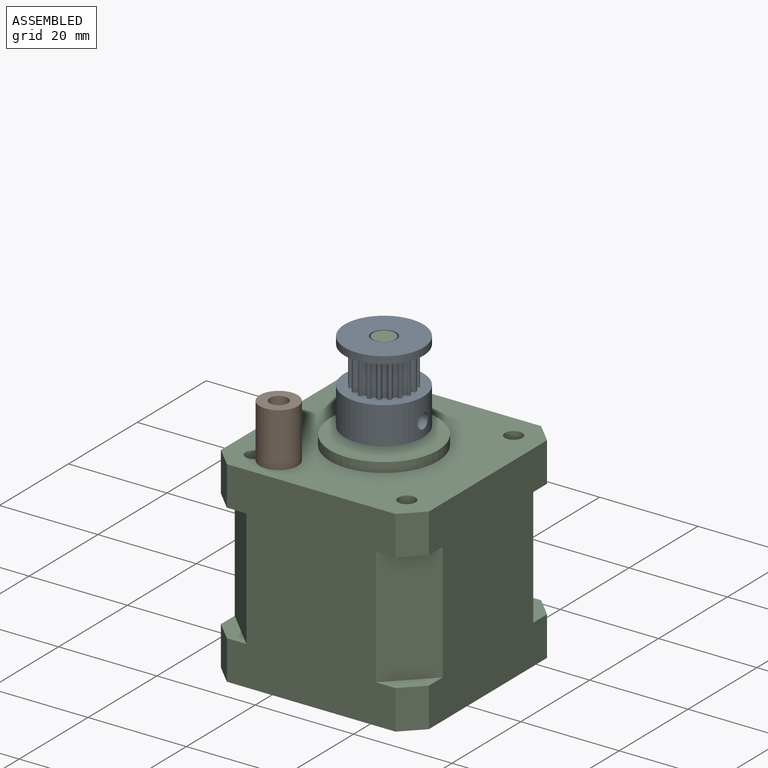
[diagram: assembled view]
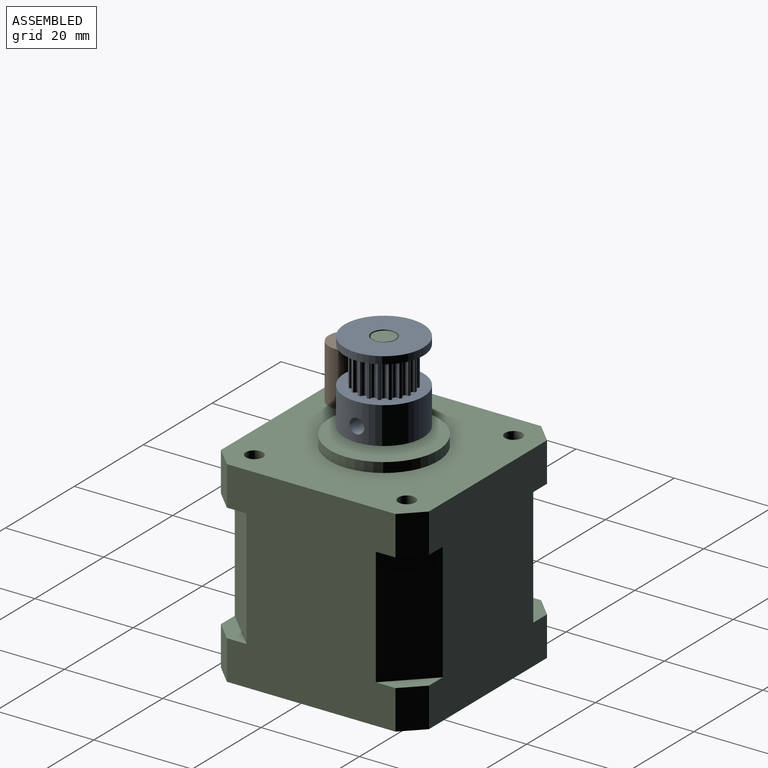
[diagram: assembled view, second angle]
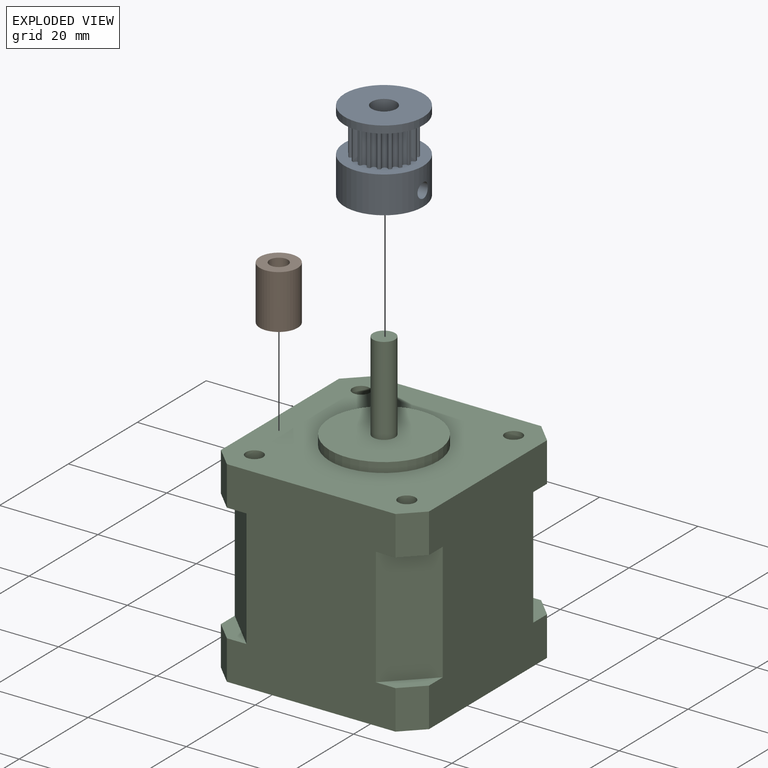
[diagram: exploded view]
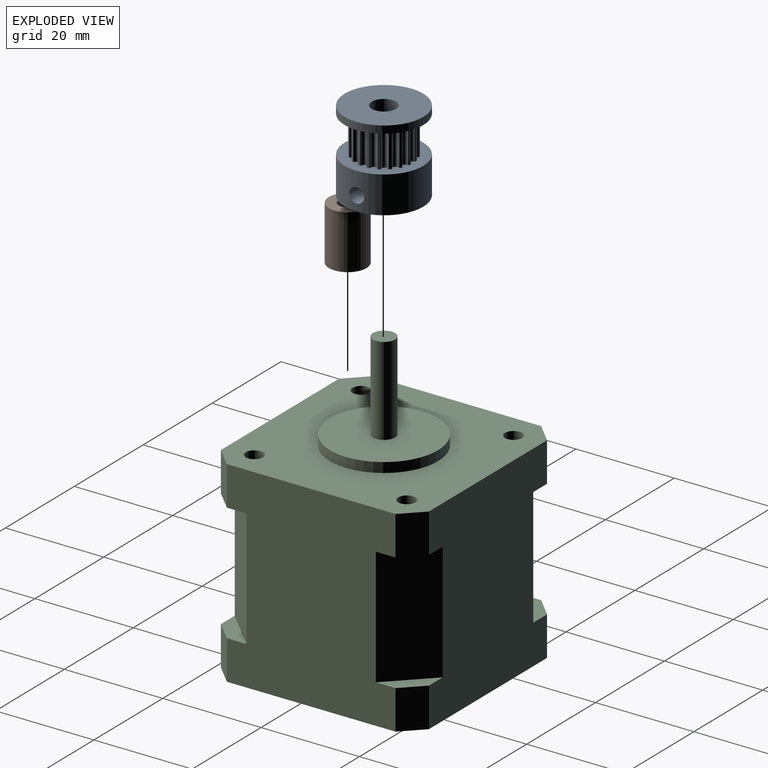
[diagram: exploded view, second angle]
ASSEMBLY  parts=3 mates=2
PART A: 128 faces, bbox 16x16x16.5 mm
  f0: cylinder r=8mm len=16mm, axis (0,0,-1), area 369.9mm2, adj f121,f126,f127
  f1: cylinder r=1mm len=7.5mm, axis (0,0,-1), area 1.9mm2, adj f2,f120,f121,f122
  f2: cylinder r=0.15mm len=7.5mm, axis (0,0,-1), area 1.4mm2, adj f1,f3,f121,f122
  f3: cylinder r=6mm len=7.5mm, axis (0,0,-1), area 3.3mm2, adj f2,f4,f121,f122
  f4: cylinder r=0.15mm len=7.5mm, axis (0,0,-1), area 1.4mm2, adj f3,f5,f121,f122
  f5: cylinder r=1mm len=7.5mm, axis (0,0,-1), area 1.9mm2, adj f4,f6,f121,f122
  f6: cylinder r=0.56mm len=7.5mm, axis (0,0,-1), area 9.8mm2, adj f5,f7,f121,f122
  f7: cylinder r=1mm len=7.5mm, axis (0,0,-1), area 1.9mm2, adj f6,f8,f121,f122
  f8: cylinder r=0.15mm len=7.5mm, axis (0,0,-1), area 1.4mm2, adj f7,f9,f121,f122
  f9: cylinder r=6mm len=7.5mm, axis (0,0,-1), area 3.3mm2, adj f8,f10,f121,f122
  f10: cylinder r=0.15mm len=7.5mm, axis (0,0,-1), area 1.4mm2, adj f9,f11,f121,f122
  f11: cylinder r=1mm len=7.5mm, axis (0,0,-1), area 1.9mm2, adj f10,f12,f121,f122
  f12: cylinder r=0.56mm len=7.5mm, axis (0,0,-1), area 9.8mm2, adj f11,f13,f121,f122
  f13: cylinder r=1mm len=7.5mm, axis (0,0,-1), area 1.9mm2, adj f12,f14,f121,f122
  f14: cylinder r=0.15mm len=7.5mm, axis (0,0,-1), area 1.4mm2, adj f13,f15,f121,f122
  f15: cylinder r=6mm len=7.5mm, axis (0,0,-1), area 3.3mm2, adj f14,f16,f121,f122
  f16: cylinder r=0.15mm len=7.5mm, axis (0,0,-1), area 1.4mm2, adj f15,f17,f121,f122
  f17: cylinder r=1mm len=7.5mm, axis (0,0,-1), area 1.9mm2, adj f16,f18,f121,f122
  f18: cylinder r=0.56mm len=7.5mm, axis (0,0,-1), area 9.8mm2, adj f17,f19,f121,f122
  f19: cylinder r=1mm len=7.5mm, axis (0,0,-1), area 1.9mm2, adj f18,f20,f121,f122
  f20: cylinder r=0.15mm len=7.5mm, axis (0,0,-1), area 1.4mm2, adj f19,f21,f121,f122
  f21: cylinder r=6mm len=7.5mm, axis (0,0,-1), area 3.3mm2, adj f20,f22,f121,f122
  f22: cylinder r=0.15mm len=7.5mm, axis (0,0,-1), area 1.4mm2, adj f21,f23,f121,f122
  f23: cylinder r=1mm len=7.5mm, axis (0,0,-1), area 1.9mm2, adj f22,f24,f121,f122
  f24: cylinder r=0.56mm len=7.5mm, axis (0,0,-1), area 9.8mm2, adj f23,f25,f121,f122
  f25: cylinder r=1mm len=7.5mm, axis (0,0,-1), area 1.9mm2, adj f24,f26,f121,f122
  f26: cylinder r=0.15mm len=7.5mm, axis (0,0,-1), area 1.4mm2, adj f25,f27,f121,f122
  f27: cylinder r=6mm len=7.5mm, axis (0,0,-1), area 2.8mm2, adj f26,f28,f121,f122
  f28: cylinder r=0.15mm len=7.5mm, axis (0,0,-1), area 2mm2, adj f27,f29,f121,f122
  f29: cylinder r=1mm len=7.5mm, axis (0,0,-1), area 1.9mm2, adj f28,f30,f121,f122
  f30: cylinder r=0.56mm len=7.5mm, axis (0,0,-1), area 9.8mm2, adj f29,f31,f121,f122
  f31: cylinder r=1mm len=7.5mm, axis (0,0,-1), area 1.9mm2, adj f30,f32,f121,f122
  f32: cylinder r=0.15mm len=7.5mm, axis (0,0,-1), area 1.4mm2, adj f31,f33,f121,f122
  f33: cylinder r=6mm len=7.5mm, axis (0,0,-1), area 3.3mm2, adj f32,f34,f121,f122
  f34: cylinder r=0.15mm len=7.5mm, axis (0,0,-1), area 1.4mm2, adj f33,f35,f121,f122
  f35: cylinder r=1mm len=7.5mm, axis (0,0,-1), area 1.9mm2, adj f34,f36,f121,f122
  f36: cylinder r=0.56mm len=7.5mm, axis (0,0,-1), area 9.8mm2, adj f35,f37,f121,f122
  f37: cylinder r=1mm len=7.5mm, axis (0,0,-1), area 1.9mm2, adj f36,f38,f121,f122
  f38: cylinder r=0.15mm len=7.5mm, axis (0,0,-1), area 1.4mm2, adj f37,f39,f121,f122
  f39: cylinder r=6mm len=7.5mm, axis (0,0,-1), area 3.3mm2, adj f38,f40,f121,f122
  f40: cylinder r=0.15mm len=7.5mm, axis (0,0,-1), area 1.4mm2, adj f39,f41,f121,f122
  f41: cylinder r=1mm len=7.5mm, axis (0,0,-1), area 1.9mm2, adj f40,f42,f121,f122
  f42: cylinder r=0.56mm len=7.5mm, axis (0,0,-1), area 9.8mm2, adj f41,f43,f121,f122
  f43: cylinder r=1mm len=7.5mm, axis (0,0,-1), area 1.9mm2, adj f42,f44,f121,f122
  f44: cylinder r=0.15mm len=7.5mm, axis (0,0,-1), area 1.4mm2, adj f43,f45,f121,f122
  f45: cylinder r=6mm len=7.5mm, axis (0,0,-1), area 3.3mm2, adj f44,f46,f121,f122
  f46: cylinder r=0.15mm len=7.5mm, axis (0,0,-1), area 1.4mm2, adj f45,f47,f121,f122
  f47: cylinder r=1mm len=7.5mm, axis (0,0,-1), area 1.9mm2, adj f46,f48,f121,f122
  f48: cylinder r=0.56mm len=7.5mm, axis (0,0,-1), area 9.8mm2, adj f47,f49,f121,f122
  f49: cylinder r=1mm len=7.5mm, axis (0,0,-1), area 1.9mm2, adj f48,f50,f121,f122
  f50: cylinder r=0.15mm len=7.5mm, axis (0,0,-1), area 1.4mm2, adj f49,f51,f121,f122
  f51: cylinder r=6mm len=7.5mm, axis (0,0,-1), area 3.3mm2, adj f50,f52,f121,f122
  f52: cylinder r=0.15mm len=7.5mm, axis (0,0,-1), area 1.4mm2, adj f51,f53,f121,f122
  f53: cylinder r=1mm len=7.5mm, axis (0,0,-1), area 1.9mm2, adj f52,f54,f121,f122
  f54: cylinder r=0.56mm len=7.5mm, axis (0,0,-1), area 9.8mm2, adj f53,f55,f121,f122
  f55: cylinder r=1mm len=7.5mm, axis (0,0,-1), area 1.9mm2, adj f54,f56,f121,f122
  f56: cylinder r=0.15mm len=7.5mm, axis (0,0,-1), area 1.4mm2, adj f55,f57,f121,f122
  f57: cylinder r=6mm len=7.5mm, axis (0,0,-1), area 3.3mm2, adj f56,f58,f121,f122
  f58: cylinder r=0.15mm len=7.5mm, axis (0,0,-1), area 1.4mm2, adj f57,f59,f121,f122
  f59: cylinder r=1mm len=7.5mm, axis (0,0,-1), area 1.9mm2, adj f58,f60,f121,f122
  f60: cylinder r=0.56mm len=7.5mm, axis (0,0,-1), area 9.8mm2, adj f59,f61,f121,f122
  f61: cylinder r=1mm len=7.5mm, axis (0,0,-1), area 1.9mm2, adj f60,f62,f121,f122
  f62: cylinder r=0.15mm len=7.5mm, axis (0,0,-1), area 1.4mm2, adj f61,f63,f121,f122
  f63: cylinder r=6mm len=7.5mm, axis (0,0,-1), area 3.3mm2, adj f62,f64,f121,f122
  f64: cylinder r=0.15mm len=7.5mm, axis (0,0,-1), area 1.4mm2, adj f63,f65,f121,f122
  f65: cylinder r=1mm len=7.5mm, axis (0,0,-1), area 1.9mm2, adj f64,f66,f121,f122
  f66: cylinder r=0.56mm len=7.5mm, axis (0,0,-1), area 9.8mm2, adj f65,f67,f121,f122
  f67: cylinder r=1mm len=7.5mm, axis (0,0,-1), area 1.9mm2, adj f66,f68,f121,f122
  f68: cylinder r=0.15mm len=7.5mm, axis (0,0,-1), area 1.4mm2, adj f67,f69,f121,f122
  f69: cylinder r=6mm len=7.5mm, axis (0,0,-1), area 3.3mm2, adj f68,f70,f121,f122
  f70: cylinder r=0.15mm len=7.5mm, axis (0,0,-1), area 1.4mm2, adj f69,f71,f121,f122
  f71: cylinder r=1mm len=7.5mm, axis (0,0,-1), area 1.9mm2, adj f70,f72,f121,f122
  f72: cylinder r=0.56mm len=7.5mm, axis (0,0,-1), area 9.8mm2, adj f71,f73,f121,f122
  f73: cylinder r=1mm len=7.5mm, axis (0,0,-1), area 1.9mm2, adj f72,f74,f121,f122
  f74: cylinder r=0.15mm len=7.5mm, axis (0,0,-1), area 1.4mm2, adj f73,f75,f121,f122
  f75: cylinder r=6mm len=7.5mm, axis (0,0,-1), area 3.3mm2, adj f74,f76,f121,f122
  f76: cylinder r=0.15mm len=7.5mm, axis (0,0,-1), area 1.4mm2, adj f75,f77,f121,f122
  f77: cylinder r=1mm len=7.5mm, axis (0,0,-1), area 1.9mm2, adj f76,f78,f121,f122
  f78: cylinder r=0.56mm len=7.5mm, axis (0,0,-1), area 9.8mm2, adj f77,f79,f121,f122
  f79: cylinder r=1mm len=7.5mm, axis (0,0,-1), area 1.9mm2, adj f78,f80,f121,f122
  f80: cylinder r=0.15mm len=7.5mm, axis (0,0,-1), area 1.4mm2, adj f79,f81,f121,f122
  f81: cylinder r=6mm len=7.5mm, axis (0,0,-1), area 3.3mm2, adj f80,f82,f121,f122
  f82: cylinder r=0.15mm len=7.5mm, axis (0,0,-1), area 1.4mm2, adj f81,f83,f121,f122
  f83: cylinder r=1mm len=7.5mm, axis (0,0,-1), area 1.9mm2, adj f82,f84,f121,f122
  f84: cylinder r=0.56mm len=7.5mm, axis (0,0,-1), area 9.8mm2, adj f83,f85,f121,f122
  f85: cylinder r=1mm len=7.5mm, axis (0,0,-1), area 1.9mm2, adj f84,f86,f121,f122
  f86: cylinder r=0.15mm len=7.5mm, axis (0,0,-1), area 1.4mm2, adj f85,f87,f121,f122
  f87: cylinder r=6mm len=7.5mm, axis (0,0,-1), area 3.3mm2, adj f86,f88,f121,f122
  f88: cylinder r=0.15mm len=7.5mm, axis (0,0,-1), area 1.4mm2, adj f87,f89,f121,f122
  f89: cylinder r=1mm len=7.5mm, axis (0,0,-1), area 1.9mm2, adj f88,f90,f121,f122
  f90: cylinder r=0.56mm len=7.5mm, axis (0,0,-1), area 9.8mm2, adj f89,f91,f121,f122
  f91: cylinder r=1mm len=7.5mm, axis (0,0,-1), area 1.9mm2, adj f90,f92,f121,f122
  f92: cylinder r=0.15mm len=7.5mm, axis (0,0,-1), area 1.4mm2, adj f91,f93,f121,f122
  f93: cylinder r=6mm len=7.5mm, axis (0,0,-1), area 3.3mm2, adj f92,f94,f121,f122
  f94: cylinder r=0.15mm len=7.5mm, axis (0,0,-1), area 1.4mm2, adj f93,f95,f121,f122
  f95: cylinder r=1mm len=7.5mm, axis (0,0,-1), area 1.9mm2, adj f94,f96,f121,f122
  f96: cylinder r=0.56mm len=7.5mm, axis (0,0,-1), area 9.8mm2, adj f95,f97,f121,f122
  f97: cylinder r=1mm len=7.5mm, axis (0,0,-1), area 1.9mm2, adj f96,f98,f121,f122
  f98: cylinder r=0.15mm len=7.5mm, axis (0,0,-1), area 1.4mm2, adj f97,f99,f121,f122
  f99: cylinder r=6mm len=7.5mm, axis (0,0,-1), area 3.3mm2, adj f98,f100,f121,f122
  f100: cylinder r=0.15mm len=7.5mm, axis (0,0,-1), area 1.4mm2, adj f99,f101,f121,f122
  f101: cylinder r=1mm len=7.5mm, axis (0,0,-1), area 1.9mm2, adj f100,f102,f121,f122
  f102: cylinder r=0.56mm len=7.5mm, axis (0,0,-1), area 9.8mm2, adj f101,f103,f121,f122
  f103: cylinder r=1mm len=7.5mm, axis (0,0,-1), area 1.9mm2, adj f102,f104,f121,f122
  f104: cylinder r=0.15mm len=7.5mm, axis (0,0,-1), area 1.4mm2, adj f103,f105,f121,f122
  f105: cylinder r=6mm len=7.5mm, axis (0,0,-1), area 3.3mm2, adj f104,f106,f121,f122
  f106: cylinder r=0.15mm len=7.5mm, axis (0,0,-1), area 1.4mm2, adj f105,f107,f121,f122
  f107: cylinder r=1mm len=7.5mm, axis (0,0,-1), area 1.9mm2, adj f106,f108,f121,f122
  f108: cylinder r=0.56mm len=7.5mm, axis (0,0,-1), area 9.8mm2, adj f107,f109,f121,f122
  f109: cylinder r=1mm len=7.5mm, axis (0,0,-1), area 1.9mm2, adj f108,f110,f121,f122
  f110: cylinder r=0.15mm len=7.5mm, axis (0,0,-1), area 1.4mm2, adj f109,f111,f121,f122
  f111: cylinder r=6mm len=7.5mm, axis (0,0,-1), area 3.3mm2, adj f110,f112,f121,f122
  f112: cylinder r=0.15mm len=7.5mm, axis (0,0,-1), area 1.4mm2, adj f111,f113,f121,f122
  f113: cylinder r=1mm len=7.5mm, axis (0,0,-1), area 1.9mm2, adj f112,f114,f121,f122
  f114: cylinder r=0.56mm len=7.5mm, axis (0,0,-1), area 9.8mm2, adj f113,f115,f121,f122
  f115: cylinder r=1mm len=7.5mm, axis (0,0,-1), area 1.9mm2, adj f114,f116,f121,f122
  f116: cylinder r=0.15mm len=7.5mm, axis (0,0,-1), area 1.4mm2, adj f115,f117,f121,f122
  f117: cylinder r=6mm len=7.5mm, axis (0,0,-1), area 3.3mm2, adj f116,f118,f121,f122
  f118: cylinder r=0.15mm len=7.5mm, axis (0,0,-1), area 1.4mm2, adj f117,f119,f121,f122
  f119: cylinder r=1mm len=7.5mm, axis (0,0,-1), area 1.9mm2, adj f118,f120,f121,f122
  f120: cylinder r=0.56mm len=7.5mm, axis (0,0,-1), area 9.8mm2, adj f1,f119,f121,f122
  f121: plane 16x16mm, normal (0,0,-1), area 102.3mm2, adj f0,f1,f2,f3,f4,f5,f6,f7
  f122: plane 16x16mm, normal (0,0,1), area 102.3mm2, adj f1,f2,f3,f4,f5,f6,f7,f8
  f123: cylinder r=8mm len=16mm, axis (0,0,1), area 75.4mm2, adj f122,f124
  f124: plane 16x16mm, normal (0,0,-1), area 181.4mm2, adj f123,f125
  f125: cylinder r=2.5mm len=16.5mm, axis (0,0,-1), area 251.8mm2, adj f124,f126,f127
  f126: cylinder r=1.5mm len=6mm, axis (1,0,0), area 53.5mm2, adj f0,f125
  f127: plane 16x16mm, normal (0,0,1), area 181.4mm2, adj f0,f125
PART B: 4 faces, bbox 7.7x7.7x11 mm
  f0: cylinder r=1.85mm len=11mm, axis (0,0,-1), area 127.9mm2, adj f2,f3
  f1: cylinder r=3.85mm len=11mm, axis (0,0,-1), area 266.1mm2, adj f2,f3
  f2: plane 7.7x7.7mm, normal (0,0,1), area 35.8mm2, adj f0,f1
  f3: plane 7.7x7.7mm, normal (0,0,-1), area 35.8mm2, adj f0,f1
PART C: 40 faces, bbox 42.3x42.3x60 mm
  f0: plane 8x8mm, normal (0,0,-1), area 24mm2, adj f8,f9,f10,f28
  f1: plane 8x8mm, normal (0,0,-1), area 24mm2, adj f10,f11,f12,f25
  f2: plane 8x8mm, normal (0,0,-1), area 24mm2, adj f12,f13,f14,f26
  f3: cylinder r=11mm len=22mm, axis (0,0,-1), area 138.2mm2, adj f4,f5
  f4: plane 22x22mm, normal (0,0,1), area 364.2mm2, adj f3,f23
  f5: plane 42.3x42.3mm, normal (0,0,1), area 1338.7mm2, adj f3,f7,f8,f9,f10,f11,f12,f13
  f6: plane 8x8mm, normal (0,0,-1), area 24mm2, adj f7,f8,f14,f27
  f7: plane 8x4mm, normal (-0.71,-0.71,0), area 45.3mm2, adj f5,f6,f8,f14
  f8: plane 40x34.3mm, normal (-1,0,0), area 1180mm2, adj f0,f5,f6,f7,f9,f27,f28,f31
  f9: plane 8x4mm, normal (-0.71,0.71,0), area 45.3mm2, adj f0,f5,f8,f10
  f10: plane 40x34.3mm, normal (0,1,0), area 1180mm2, adj f0,f1,f5,f9,f11,f25,f28,f30
  f11: plane 8x4mm, normal (0.71,0.71,0), area 45.3mm2, adj f1,f5,f10,f12
  f12: plane 40x34.3mm, normal (1,0,0), area 1180mm2, adj f1,f2,f5,f11,f13,f25,f26,f29
  f13: plane 8x4mm, normal (0.71,-0.71,0), area 45.3mm2, adj f2,f5,f12,f14
  f14: plane 40x34.3mm, normal (0,-1,0), area 1180mm2, adj f2,f5,f6,f7,f13,f26,f27,f29
  f15: cylinder r=1.75mm len=4.5mm, axis (0,0,1), area 49.5mm2, adj f5,f16
  f16: plane 3.5x3.5mm, normal (0,0,1), area 9.6mm2, adj f15
  f17: cylinder r=1.75mm len=4.5mm, axis (0,0,1), area 49.5mm2, adj f5,f18
  f18: plane 3.5x3.5mm, normal (0,0,1), area 9.6mm2, adj f17
  f19: cylinder r=1.75mm len=4.5mm, axis (0,0,1), area 49.5mm2, adj f5,f20
  f20: plane 3.5x3.5mm, normal (0,0,1), area 9.6mm2, adj f19
  f21: cylinder r=1.75mm len=4.5mm, axis (0,0,1), area 49.5mm2, adj f5,f22
  f22: plane 3.5x3.5mm, normal (0,0,1), area 9.6mm2, adj f21
  f23: cylinder r=2.25mm len=18mm, axis (0,0,-1), area 254.5mm2, adj f4,f24
  f24: plane 4.5x4.5mm, normal (0,0,1), area 15.9mm2, adj f23
  f25: plane 24x8mm, normal (0.71,0.71,0), area 271.5mm2, adj f1,f10,f12,f30
  f26: plane 24x8mm, normal (0.71,-0.71,0), area 271.5mm2, adj f2,f12,f14,f29
  f27: plane 24x8mm, normal (-0.71,-0.71,0), area 271.5mm2, adj f6,f8,f14,f37
  f28: plane 24x8mm, normal (-0.71,0.71,0), area 271.5mm2, adj f0,f8,f10,f31
  f29: plane 8x8mm, normal (0,0,1), area 24mm2, adj f12,f14,f26,f35
  f30: plane 8x8mm, normal (0,0,1), area 24mm2, adj f10,f12,f25,f34
  f31: plane 8x8mm, normal (0,0,1), area 24mm2, adj f8,f10,f28,f33
  f32: plane 8x4mm, normal (-0.71,-0.71,0), area 45.3mm2, adj f8,f14,f36,f37
  f33: plane 8x4mm, normal (-0.71,0.71,0), area 45.3mm2, adj f8,f10,f31,f36
  f34: plane 8x4mm, normal (0.71,0.71,0), area 45.3mm2, adj f10,f12,f30,f36
  f35: plane 8x4mm, normal (0.71,-0.71,0), area 45.3mm2, adj f12,f14,f29,f36
  f36: plane 42.3x42.3mm, normal (0,0,-1), area 1707mm2, adj f8,f10,f12,f14,f32,f33,f34,f35
  f37: plane 8x8mm, normal (0,0,1), area 24mm2, adj f8,f14,f27,f32
  f38: cylinder r=4mm len=8mm, axis (0,0,-1), area 25.1mm2, adj f36,f39
  f39: plane 8x8mm, normal (0,0,-1), area 50.3mm2, adj f38
PLACE A rot(axis=(0,1,0),180deg) t=(9.59,3.71,23.76)mm
PLACE B t=(-1.31,-11.29,5.2)mm
PLACE C t=(9.59,3.71,5.2)mm fixed
MATE planar B.f0 <-> C.f3  axis (0,0,-1) through (-1.31,-11.29,5.2)mm
MATE slider A.f0 <-> C.f3  axis (0,0,1) through (9.59,3.71,25.26)mm
